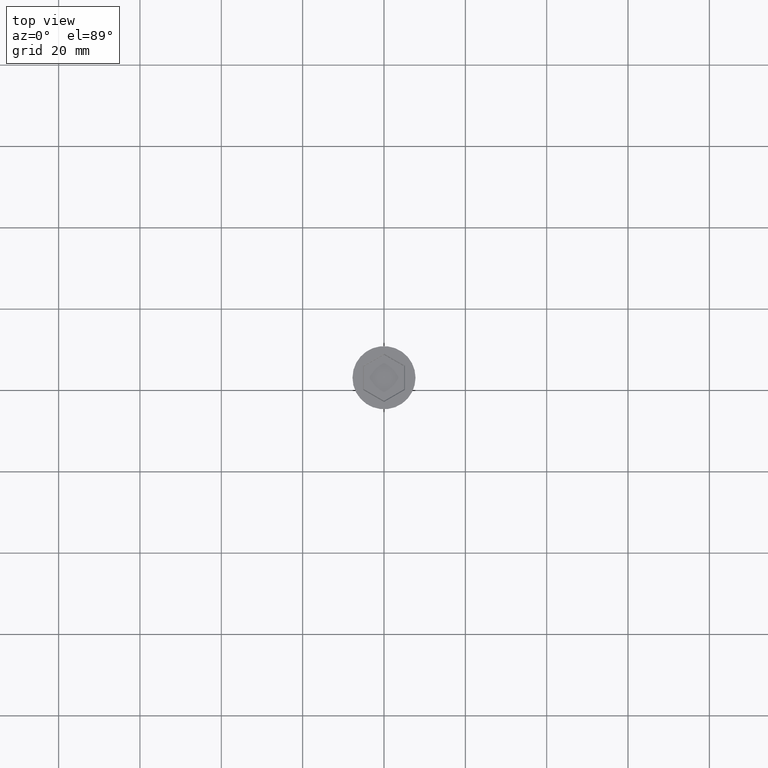
[diagram: clean part render]
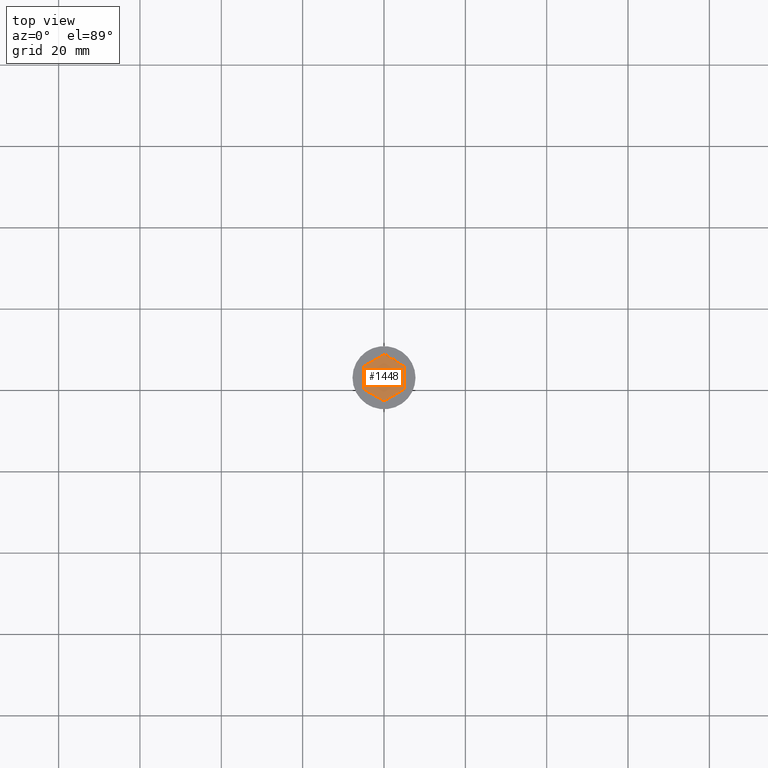
[diagram: same view with one face highlighted and labeled with its STEP entity id]
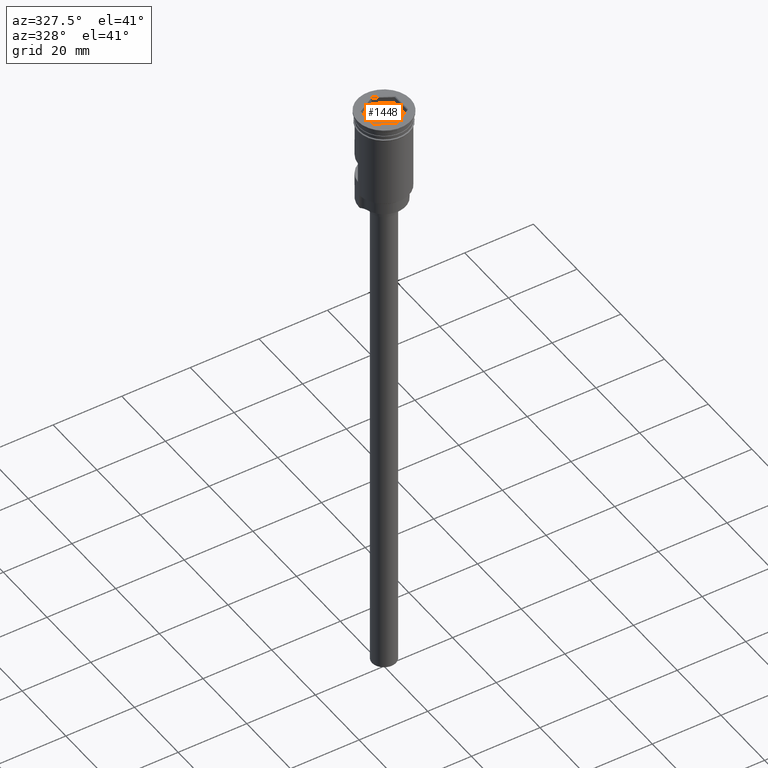
[diagram: same view with one face highlighted and labeled with its STEP entity id]
A machine part, top view. The second image highlights one B-rep face of the part: STEP entity #1448.
A second angle (auxiliary view) of the same face is appended — the face is thin or edge-on in the first view.
In plain terms, the highlighted planar face has unit normal (-0, 0, 1).
Its self-contained STEP definition (entity closure, byte-faithful):
#2 = CARTESIAN_POINT ( 'NONE',  ( -4.949999999999999289, 2.857883832488647524, -2.000000000000000000 ) ) ;
#12 = LINE ( 'NONE', #793, #1055 ) ;
#93 = VERTEX_POINT ( 'NONE', #470 ) ;
#97 = DIRECTION ( 'NONE',  ( 0.000000000000000000, -1.000000000000000000, 0.000000000000000000 ) ) ;
#128 = PLANE ( 'NONE',  #978 ) ;
#160 = DIRECTION ( 'NONE',  ( 1.517489493673898021E-16, 1.000000000000000000, 0.000000000000000000 ) ) ;
#162 = VECTOR ( 'NONE', #97, 1000.000000000000000 ) ;
#201 = EDGE_CURVE ( 'NONE', #93, #1382, #12, .T. ) ;
#239 = LINE ( 'NONE', #458, #162 ) ;
#261 = CARTESIAN_POINT ( 'NONE',  ( 4.949999999999999289, 2.857883832488647968, -2.000000000000000000 ) ) ;
#272 = DIRECTION ( 'NONE',  ( 0.8660254037844385966, -0.5000000000000001110, 0.000000000000000000 ) ) ;
#291 = VECTOR ( 'NONE', #998, 1000.000000000000000 ) ;
#342 = CARTESIAN_POINT ( 'NONE',  ( -4.336808689942017736E-16, -5.715767664977295937, -2.000000000000000000 ) ) ;
#345 = ORIENTED_EDGE ( 'NONE', *, *, #201, .T. ) ;
#386 = DIRECTION ( 'NONE',  ( -0.8660254037844387076, 0.4999999999999999445, 0.000000000000000000 ) ) ;
#423 = EDGE_LOOP ( 'NONE', ( #798, #1531, #1604, #345, #1057, #1235 ) ) ;
#458 = CARTESIAN_POINT ( 'NONE',  ( -4.949999999999999289, 2.857883832488647524, -2.000000000000000000 ) ) ;
#470 = CARTESIAN_POINT ( 'NONE',  ( -4.949999999999999289, -2.857883832488647968, -2.000000000000000000 ) ) ;
#494 = EDGE_CURVE ( 'NONE', #1382, #816, #964, .T. ) ;
#545 = CARTESIAN_POINT ( 'NONE',  ( 4.949999999999998401, -2.857883832488648412, -2.000000000000000000 ) ) ;
#693 = VERTEX_POINT ( 'NONE', #2 ) ;
#761 = CARTESIAN_POINT ( 'NONE',  ( 4.336808689942017736E-16, 5.715767664977295048, -2.000000000000000000 ) ) ;
#781 = DIRECTION ( 'NONE',  ( -0.8660254037844385966, -0.4999999999999999445, 0.000000000000000000 ) ) ;
#793 = CARTESIAN_POINT ( 'NONE',  ( -4.949999999999999289, -2.857883832488647968, -2.000000000000000000 ) ) ;
#798 = ORIENTED_EDGE ( 'NONE', *, *, #1024, .T. ) ;
#816 = VERTEX_POINT ( 'NONE', #545 ) ;
#841 = CARTESIAN_POINT ( 'NONE',  ( 4.336808689942017736E-16, 5.715767664977295048, -2.000000000000000000 ) ) ;
#922 = LINE ( 'NONE', #1519, #1425 ) ;
#952 = VERTEX_POINT ( 'NONE', #970 ) ;
#964 = LINE ( 'NONE', #342, #291 ) ;
#970 = CARTESIAN_POINT ( 'NONE',  ( 4.949999999999999289, 2.857883832488647968, -2.000000000000000000 ) ) ;
#978 = AXIS2_PLACEMENT_3D ( 'NONE', #1354, #1162, #1389 ) ;
#997 = EDGE_CURVE ( 'NONE', #693, #93, #239, .T. ) ;
#998 = DIRECTION ( 'NONE',  ( 0.8660254037844387076, 0.4999999999999999445, 0.000000000000000000 ) ) ;
#1018 = LINE ( 'NONE', #761, #1547 ) ;
#1024 = EDGE_CURVE ( 'NONE', #952, #1592, #1484, .T. ) ;
#1036 = EDGE_CURVE ( 'NONE', #1592, #693, #1018, .T. ) ;
#1055 = VECTOR ( 'NONE', #272, 1000.000000000000114 ) ;
#1057 = ORIENTED_EDGE ( 'NONE', *, *, #494, .T. ) ;
#1095 = CARTESIAN_POINT ( 'NONE',  ( -4.336808689942017736E-16, -5.715767664977295937, -2.000000000000000000 ) ) ;
#1112 = FACE_OUTER_BOUND ( 'NONE', #423, .T. ) ;
#1162 = DIRECTION ( 'NONE',  ( -0.000000000000000000, 0.000000000000000000, 1.000000000000000000 ) ) ;
#1228 = VECTOR ( 'NONE', #386, 1000.000000000000000 ) ;
#1235 = ORIENTED_EDGE ( 'NONE', *, *, #1437, .T. ) ;
#1354 = CARTESIAN_POINT ( 'NONE',  ( 0.000000000000000000, 0.000000000000000000, -2.000000000000000000 ) ) ;
#1382 = VERTEX_POINT ( 'NONE', #1095 ) ;
#1389 = DIRECTION ( 'NONE',  ( 1.000000000000000000, 0.000000000000000000, 0.000000000000000000 ) ) ;
#1425 = VECTOR ( 'NONE', #160, 1000.000000000000000 ) ;
#1437 = EDGE_CURVE ( 'NONE', #816, #952, #922, .T. ) ;
#1448 = ADVANCED_FACE ( 'NONE', ( #1112 ), #128, .T. ) ;
#1484 = LINE ( 'NONE', #261, #1228 ) ;
#1519 = CARTESIAN_POINT ( 'NONE',  ( 4.949999999999998401, -2.857883832488648412, -2.000000000000000000 ) ) ;
#1531 = ORIENTED_EDGE ( 'NONE', *, *, #1036, .T. ) ;
#1547 = VECTOR ( 'NONE', #781, 1000.000000000000114 ) ;
#1592 = VERTEX_POINT ( 'NONE', #841 ) ;
#1604 = ORIENTED_EDGE ( 'NONE', *, *, #997, .T. ) ;